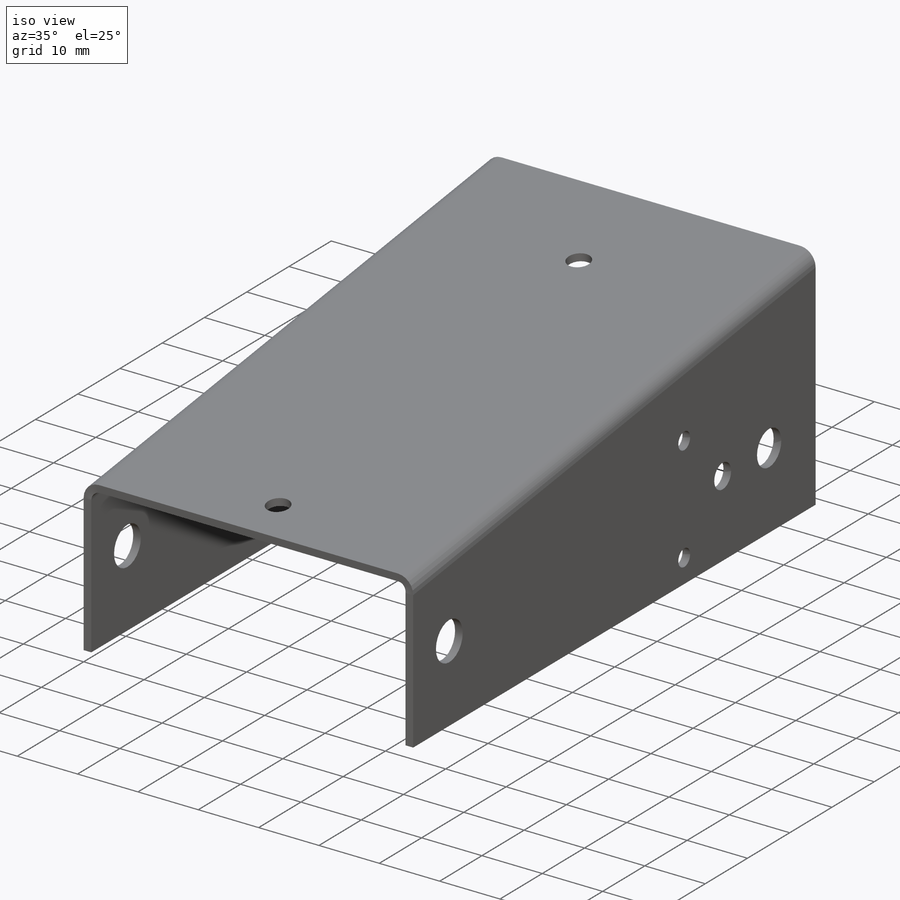
[diagram: iso view]
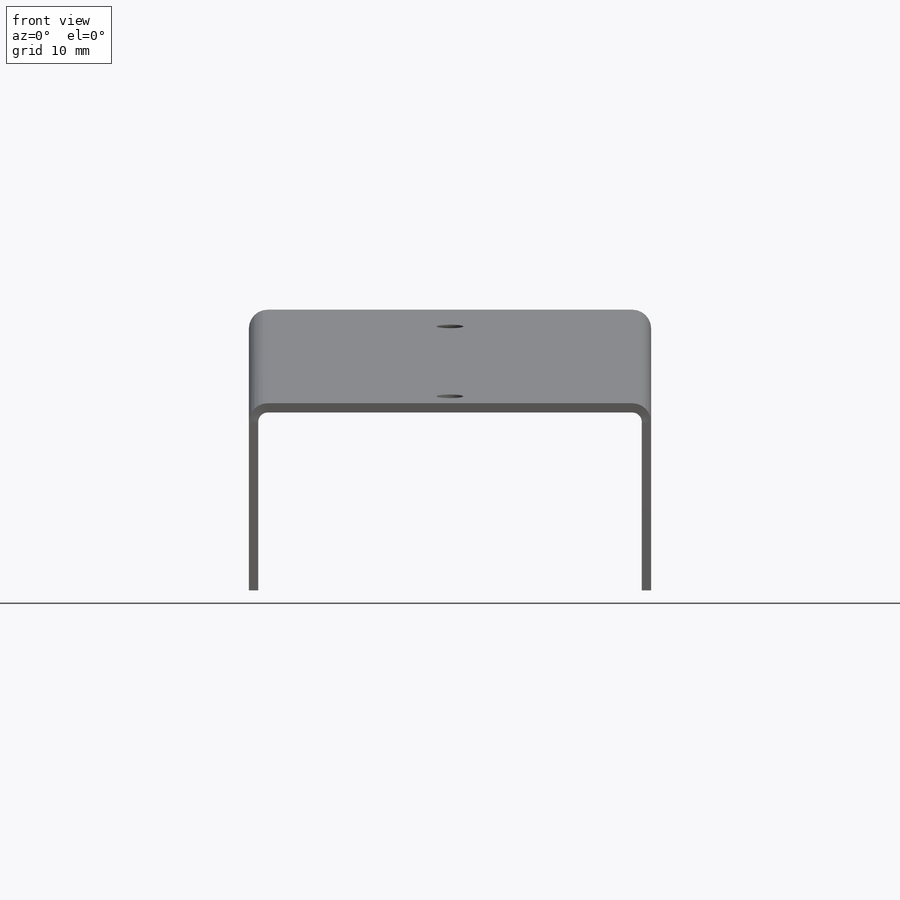
[diagram: front view]
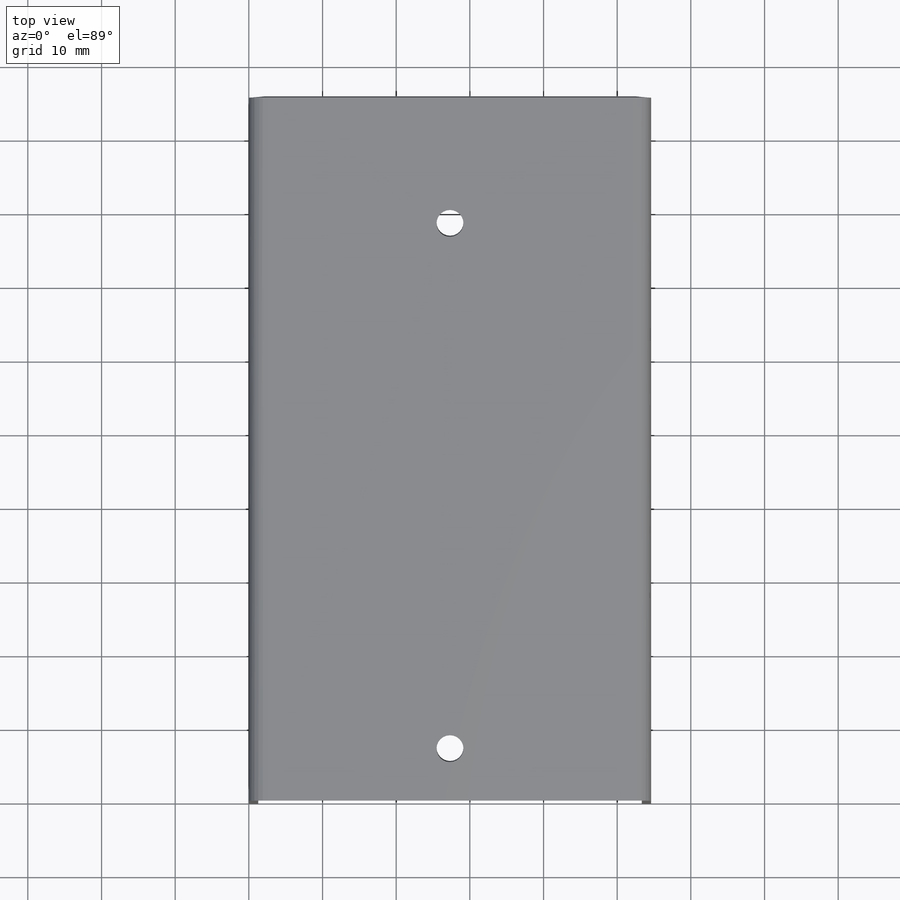
[diagram: top view]
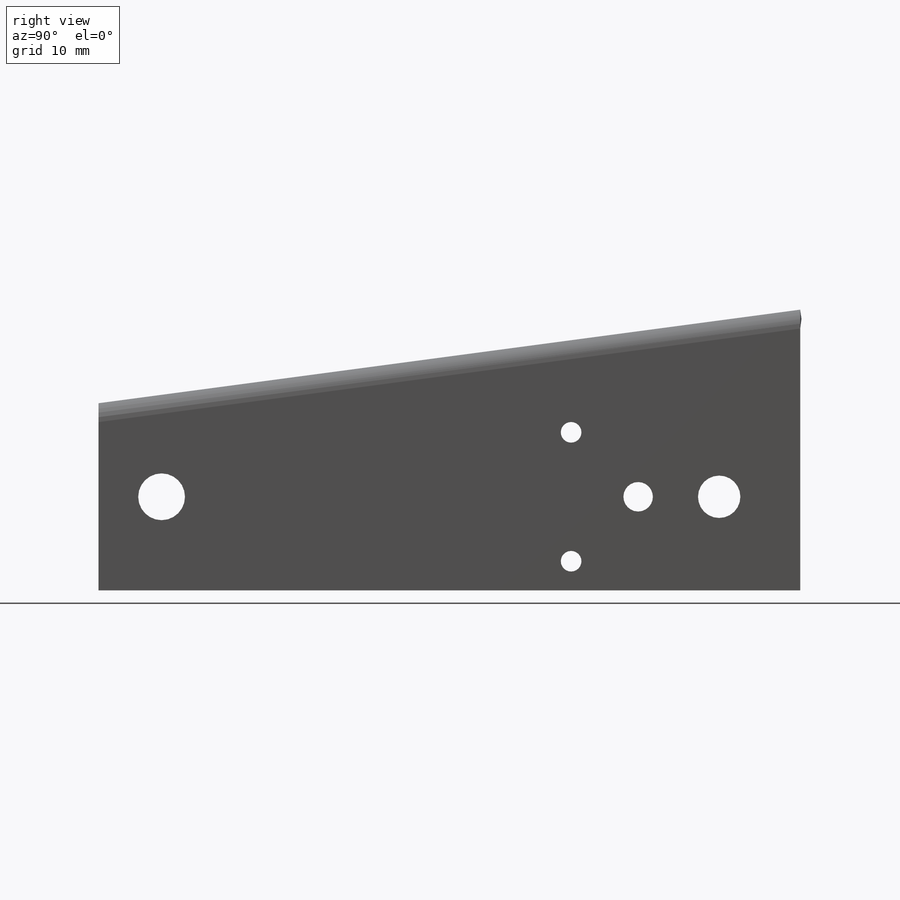
[diagram: right view]
SOLIDWORKS PART (.sldprt)
format: sldprt  version: not decoded by parser v0  size: 274,432 bytes
history: native  units: mm
features: sketch x4, material x1, extrude x1, cut_extrude x1, sheet_metal_op x1 + 2 further entries (+11 scaffold rows collapsed)
feature tree (21):
  scaffold x11  (default folders/planes/origin — collapsed)
  material  "Material <not specified>"
  sketch  "Sketch1"  dims[D5=2.8mm D6=2.8mm D7=4.0mm D8=5.754mm D15=6.35mm D1=95.25mm D2=25.4mm D3=38.1mm D4=12.7mm D9=11.0mm D10=22.0mm D11=31.1mm D12=17.5mm D13=8.75mm D14=75.692mm]
  extrude  "Boss-Extrude1"  Depth=54.61mm
  sketch  "Sketch3"  dims[D1=3.6576mm D2=3.6576mm]
  cut_extrude  "Cut-Extrude2"  Depth=2.54mm
  sheet_metal_op  "Sheet-Metal1"  SharpBend2=0
  "Flat-Pattern1"
  sketch  "Bend-Lines1"
  sketch  "Bounding-Box1"
  "Flatten-<SharpBend2>1"
decode coverage: 5 of 7 modeling features carry decoded parameters; 2 rows unclassified (native names shown)
note: suppression state not decoded; provenance and decode notes live in map.json
